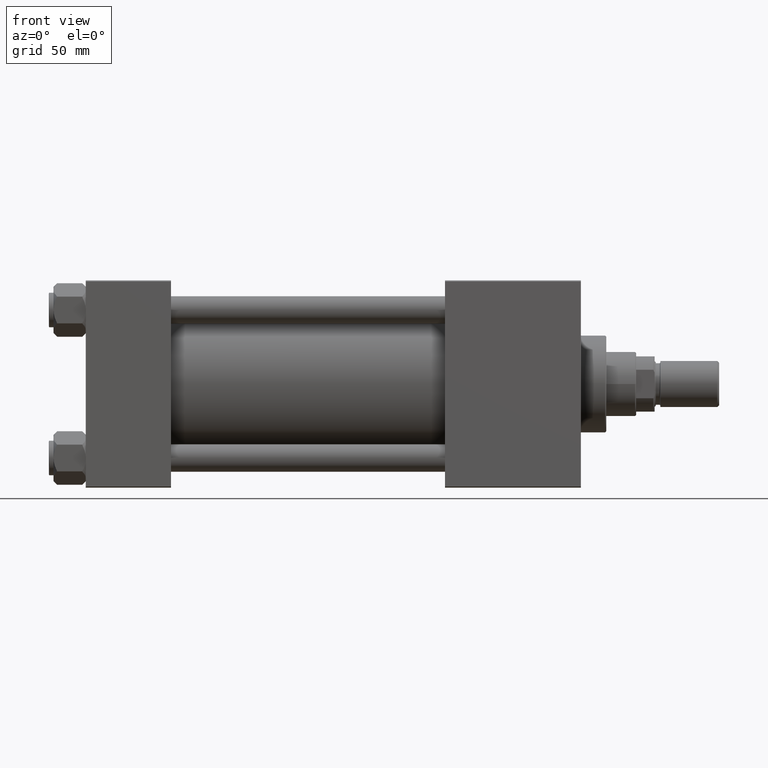
[diagram: clean part render]
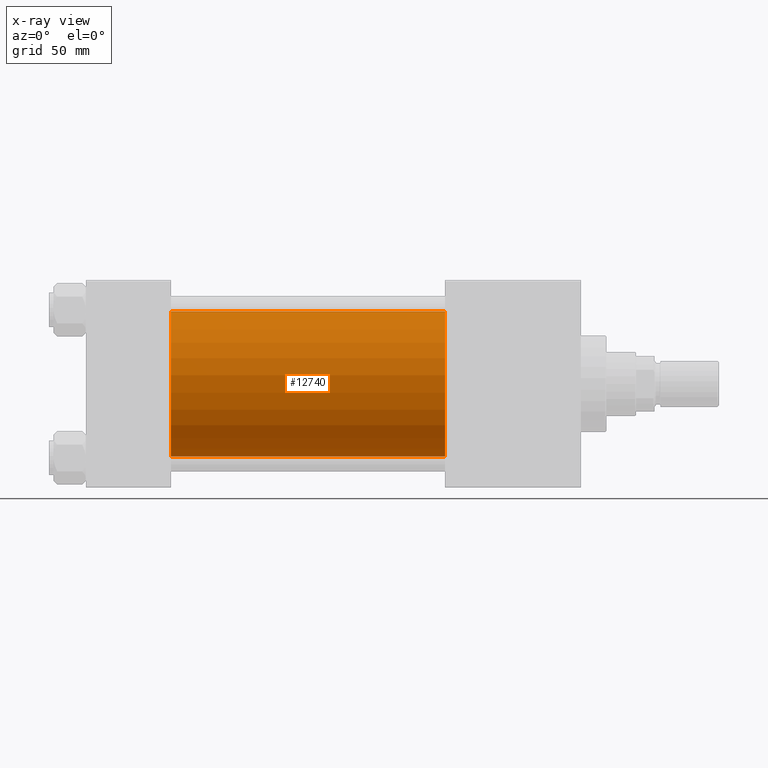
[diagram: x-ray — body ghosted, one internal face saturated and labeled with its STEP entity id]
A machine part, front view, then the same camera in x-ray: the body is ghosted and one INTERNAL B-rep face — a face not visible from any outside direction — is saturated and labeled: STEP entity #12740.
In plain terms, the highlighted cylindrical surface (partial cylindrical patch) has radius 31.5 mm, axis along (-1, -0, -0).
Its self-contained STEP definition (entity closure, byte-faithful):
#391 = LINE ( 'NONE', #39693, #941 ) ;
#941 = VECTOR ( 'NONE', #20963, 1000.000000000000000 ) ;
#2801 = ORIENTED_EDGE ( 'NONE', *, *, #31170, .F. ) ;
#3470 = ORIENTED_EDGE ( 'NONE', *, *, #22573, .T. ) ;
#4406 = VECTOR ( 'NONE', #33798, 1000.000000000000000 ) ;
#7839 = DIRECTION ( 'NONE',  ( -1.000000000000000000, -0.000000000000000000, -0.000000000000000000 ) ) ;
#9439 = DIRECTION ( 'NONE',  ( 0.000000000000000000, 0.000000000000000000, -1.000000000000000000 ) ) ;
#10070 = AXIS2_PLACEMENT_3D ( 'NONE', #38674, #7839, #23519 ) ;
#10919 = CARTESIAN_POINT ( 'NONE',  ( 156.0000000000000000, -2.602085213965210642E-15, 31.50000000000000000 ) ) ;
#12740 = ADVANCED_FACE ( 'NONE', ( #50767 ), #15569, .F. ) ;
#12898 = CARTESIAN_POINT ( 'NONE',  ( 156.0000000000000000, -2.602085213965210642E-15, 31.50000000000000000 ) ) ;
#15303 = EDGE_CURVE ( 'NONE', #41298, #15525, #22990, .T. ) ;
#15525 = VERTEX_POINT ( 'NONE', #23994 ) ;
#15569 = CYLINDRICAL_SURFACE ( 'NONE', #10070, 31.50000000000000000 ) ;
#16150 = CARTESIAN_POINT ( 'NONE',  ( 37.00000000000000000, -2.602085213965210642E-15, 0.000000000000000000 ) ) ;
#16188 = ORIENTED_EDGE ( 'NONE', *, *, #36573, .T. ) ;
#19746 = CARTESIAN_POINT ( 'NONE',  ( 156.0000000000000000, -2.602085213965210642E-15, 0.000000000000000000 ) ) ;
#19764 = AXIS2_PLACEMENT_3D ( 'NONE', #16150, #20761, #9439 ) ;
#20761 = DIRECTION ( 'NONE',  ( 1.000000000000000000, 0.000000000000000000, 0.000000000000000000 ) ) ;
#20963 = DIRECTION ( 'NONE',  ( -1.000000000000000000, -0.000000000000000000, -0.000000000000000000 ) ) ;
#22573 = EDGE_CURVE ( 'NONE', #41298, #34407, #43240, .T. ) ;
#22990 = LINE ( 'NONE', #10919, #4406 ) ;
#23519 = DIRECTION ( 'NONE',  ( 0.000000000000000000, 0.000000000000000000, 1.000000000000000000 ) ) ;
#23855 = DIRECTION ( 'NONE',  ( 0.000000000000000000, 0.000000000000000000, -1.000000000000000000 ) ) ;
#23994 = CARTESIAN_POINT ( 'NONE',  ( 37.00000000000000000, -2.602085213965210642E-15, 31.50000000000000000 ) ) ;
#26107 = ORIENTED_EDGE ( 'NONE', *, *, #15303, .F. ) ;
#31170 = EDGE_CURVE ( 'NONE', #15525, #38738, #33715, .T. ) ;
#31824 = DIRECTION ( 'NONE',  ( 1.000000000000000000, 0.000000000000000000, 0.000000000000000000 ) ) ;
#33715 = CIRCLE ( 'NONE', #19764, 31.50000000000000000 ) ;
#33798 = DIRECTION ( 'NONE',  ( -1.000000000000000000, -0.000000000000000000, -0.000000000000000000 ) ) ;
#34407 = VERTEX_POINT ( 'NONE', #44891 ) ;
#36573 = EDGE_CURVE ( 'NONE', #34407, #38738, #391, .T. ) ;
#37489 = AXIS2_PLACEMENT_3D ( 'NONE', #19746, #31824, #23855 ) ;
#38674 = CARTESIAN_POINT ( 'NONE',  ( 156.0000000000000000, -2.602085213965210642E-15, 0.000000000000000000 ) ) ;
#38738 = VERTEX_POINT ( 'NONE', #50432 ) ;
#39693 = CARTESIAN_POINT ( 'NONE',  ( 156.0000000000000000, 1.255552203348951850E-15, -31.50000000000000000 ) ) ;
#41298 = VERTEX_POINT ( 'NONE', #12898 ) ;
#43240 = CIRCLE ( 'NONE', #37489, 31.50000000000000000 ) ;
#44891 = CARTESIAN_POINT ( 'NONE',  ( 156.0000000000000000, 1.255552203348951850E-15, -31.50000000000000000 ) ) ;
#50432 = CARTESIAN_POINT ( 'NONE',  ( 37.00000000000000000, 1.255552203348951850E-15, -31.50000000000000000 ) ) ;
#50767 = FACE_OUTER_BOUND ( 'NONE', #50869, .T. ) ;
#50869 = EDGE_LOOP ( 'NONE', ( #3470, #16188, #2801, #26107 ) ) ;